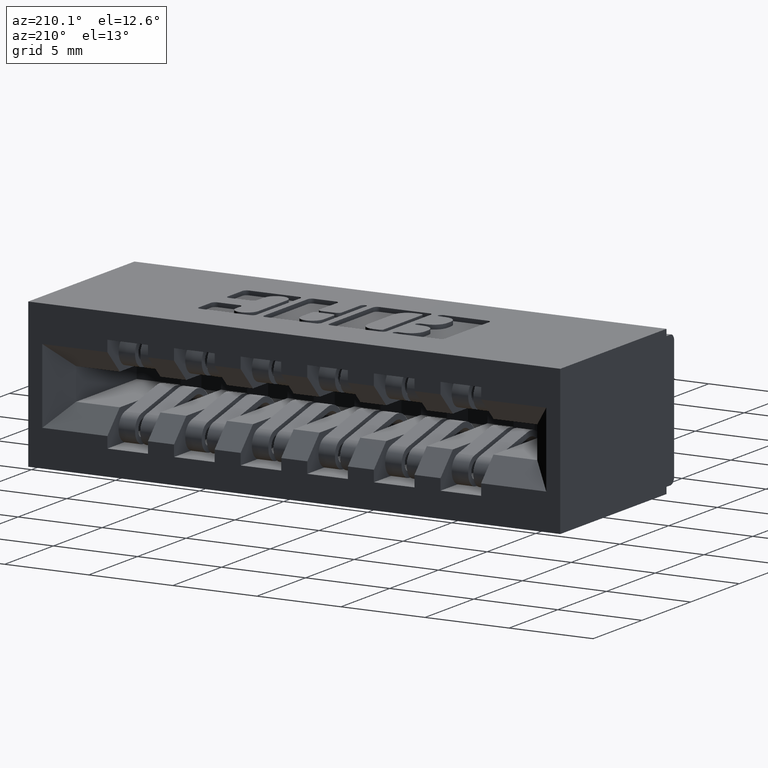
[diagram: clean part render]
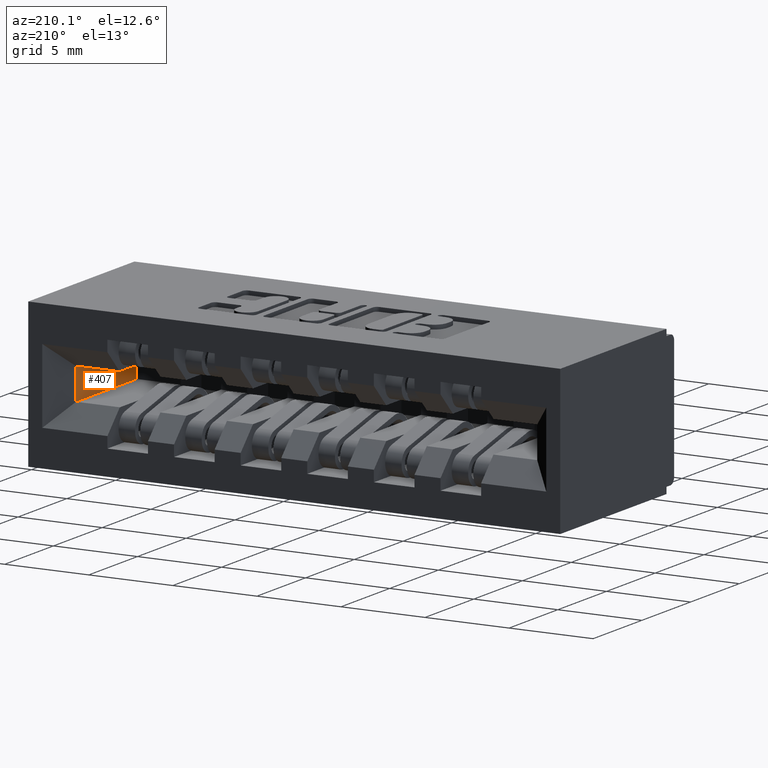
[diagram: same view with one face highlighted and labeled with its STEP entity id]
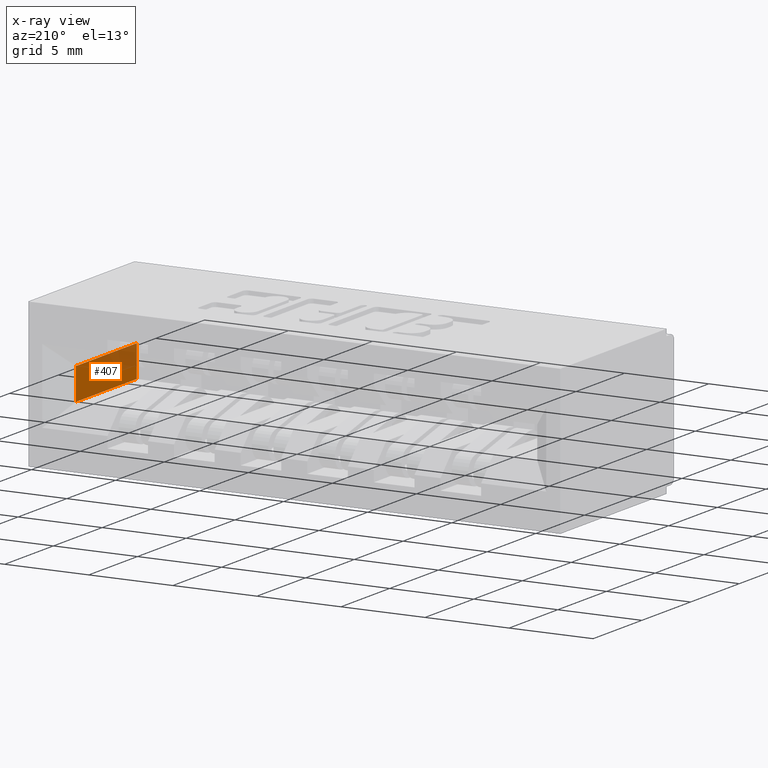
[diagram: x-ray of the same camera — body ghosted, the highlighted face saturated]
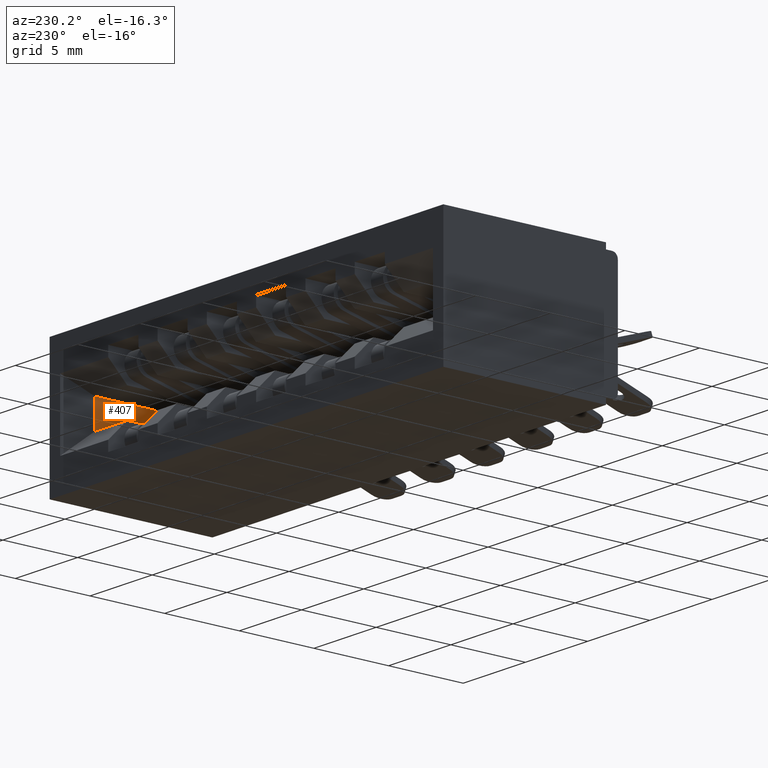
[diagram: same view with one face highlighted and labeled with its STEP entity id]
A machine part, auxiliary view. The second image highlights one B-rep face of the part: STEP entity #407.
The next image is the same camera in x-ray: the body ghosted, the highlighted face saturated — about 31% of this face is hidden behind the body in this view.
A second angle (auxiliary view) of the same face is appended — the face is thin or edge-on in the first view.
In plain terms, the highlighted planar face has unit normal (1, 0, 0).
Its self-contained STEP definition (entity closure, byte-faithful):
#407 = ADVANCED_FACE ( 'NONE', ( #9624 ), #2152, .F. ) ;
#659 = VECTOR ( 'NONE', #4547, 39.37007874015748100 ) ;
#707 = VERTEX_POINT ( 'NONE', #955 ) ;
#955 = CARTESIAN_POINT ( 'NONE',  ( 1.461000000000002700, 0.1650000000000000100, -0.1345000000000002300 ) ) ;
#1090 = AXIS2_PLACEMENT_3D ( 'NONE', #8907, #10671, #3712 ) ;
#1251 = CARTESIAN_POINT ( 'NONE',  ( 1.461000000000002700, 0.1650000000000000100, -0.2085000000000002400 ) ) ;
#1294 = LINE ( 'NONE', #3893, #6761 ) ;
#1668 = CARTESIAN_POINT ( 'NONE',  ( 1.461000000000002700, 0.4100000000000002500, -0.1345000000000002300 ) ) ;
#1899 = CARTESIAN_POINT ( 'NONE',  ( 1.461000000000002700, 0.1650000000000000100, -0.2085000000000002400 ) ) ;
#2152 = PLANE ( 'NONE',  #1090 ) ;
#2213 = DIRECTION ( 'NONE',  ( -0.0000000000000000000, -0.0000000000000000000, -1.000000000000000000 ) ) ;
#2569 = LINE ( 'NONE', #2910, #10423 ) ;
#2686 = EDGE_CURVE ( 'NONE', #707, #10157, #1294, .T. ) ;
#2910 = CARTESIAN_POINT ( 'NONE',  ( 1.461000000000002700, 0.4100000000000002500, -0.2085000000000002400 ) ) ;
#3712 = DIRECTION ( 'NONE',  ( -0.0000000000000000000, 0.0000000000000000000, -1.000000000000000000 ) ) ;
#3893 = CARTESIAN_POINT ( 'NONE',  ( 1.461000000000002700, 0.1650000000000000100, -0.2085000000000002400 ) ) ;
#3941 = EDGE_CURVE ( 'NONE', #7512, #8140, #2569, .T. ) ;
#4464 = EDGE_CURVE ( 'NONE', #707, #7512, #6545, .T. ) ;
#4547 = DIRECTION ( 'NONE',  ( -0.0000000000000000000, 1.000000000000000000, -0.0000000000000000000 ) ) ;
#4768 = ORIENTED_EDGE ( 'NONE', *, *, #9032, .F. ) ;
#6310 = EDGE_LOOP ( 'NONE', ( #9457, #7082, #4768, #6392 ) ) ;
#6378 = DIRECTION ( 'NONE',  ( -0.0000000000000000000, 1.000000000000000000, -0.0000000000000000000 ) ) ;
#6392 = ORIENTED_EDGE ( 'NONE', *, *, #2686, .F. ) ;
#6545 = LINE ( 'NONE', #10583, #659 ) ;
#6710 = VECTOR ( 'NONE', #6378, 39.37007874015748100 ) ;
#6761 = VECTOR ( 'NONE', #2213, 39.37007874015748100 ) ;
#7082 = ORIENTED_EDGE ( 'NONE', *, *, #3941, .T. ) ;
#7241 = LINE ( 'NONE', #1899, #6710 ) ;
#7512 = VERTEX_POINT ( 'NONE', #1668 ) ;
#8140 = VERTEX_POINT ( 'NONE', #10521 ) ;
#8907 = CARTESIAN_POINT ( 'NONE',  ( 1.461000000000002700, 0.1650000000000000100, -0.2085000000000002400 ) ) ;
#9032 = EDGE_CURVE ( 'NONE', #10157, #8140, #7241, .T. ) ;
#9457 = ORIENTED_EDGE ( 'NONE', *, *, #4464, .T. ) ;
#9624 = FACE_OUTER_BOUND ( 'NONE', #6310, .T. ) ;
#10157 = VERTEX_POINT ( 'NONE', #1251 ) ;
#10423 = VECTOR ( 'NONE', #10796, 39.37007874015748100 ) ;
#10521 = CARTESIAN_POINT ( 'NONE',  ( 1.461000000000002700, 0.4100000000000002500, -0.2085000000000002400 ) ) ;
#10583 = CARTESIAN_POINT ( 'NONE',  ( 1.461000000000002700, 0.1650000000000000100, -0.1345000000000002300 ) ) ;
#10671 = DIRECTION ( 'NONE',  ( 1.000000000000000000, 0.0000000000000000000, -0.0000000000000000000 ) ) ;
#10796 = DIRECTION ( 'NONE',  ( 0.0000000000000000000, 0.0000000000000000000, -1.000000000000000000 ) ) ;